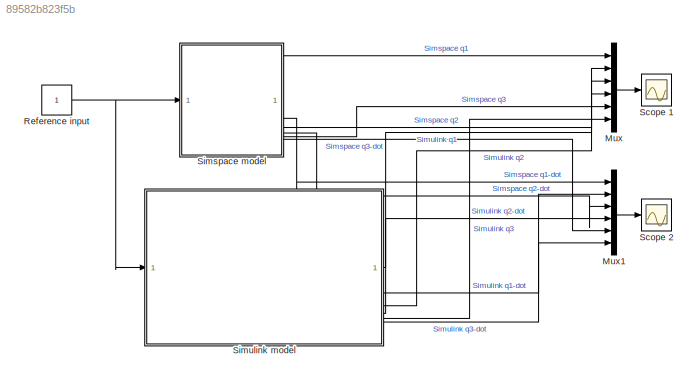
MODEL slx_89582b823f5b
KIND model
CONFIG AbsTol = auto
CONFIG EnableMultiTasking = off
CONFIG FixedStep = auto
CONFIG MaxStep = auto
CONFIG MinStep = auto
CONFIG RelTol = 1e-3
CONFIG SampleTimeConstraint = Unconstrained
CONFIG SolverName = VariableStepAuto
CONFIG StartTime = 0.0
CONFIG StopTime = 10.0
BLOCK [Mux] Mux
  DisplayOption = bar
  Inputs = 6
BLOCK [Mux] Mux1
  DisplayOption = bar
  Inputs = 6
BLOCK [Constant] Reference input
BLOCK [Scope] Scope 1
  Floating = off
  NumInputPorts = 1
  ScopeSpecificationString = Simulink.scopes.TimeScopeBlockCfg('CurrentConfiguration', extmgr.ConfigurationSet(extmgr.Configuration('Core','General UI',true),extmgr.Configuration('Core','Source UI',true),extmgr.Configuration('Sources','WiredSimulink',true),extmgr.Configuration('Visuals','Time Domain',true,'SerializedDisplays',{struct('MinYLimReal','-1.62217','MaxYLimReal','5.21334','YLabelReal','','MinYLimMag','0.00000','MaxY...<+1399ch>
BLOCK [Scope] Scope 2
  Floating = off
  NumInputPorts = 1
  ScopeSpecificationString = Simulink.scopes.TimeScopeBlockCfg('CurrentConfiguration', extmgr.ConfigurationSet(extmgr.Configuration('Core','General UI',true),extmgr.Configuration('Core','Source UI',true),extmgr.Configuration('Sources','WiredSimulink',true,'DataLoggingVariableName','ScopeData1'),extmgr.Configuration('Visuals','Time Domain',true,'SerializedDisplays',{struct('MinYLimReal','-11.29657','MaxYLimReal','12.95949','YL...<+1525ch>
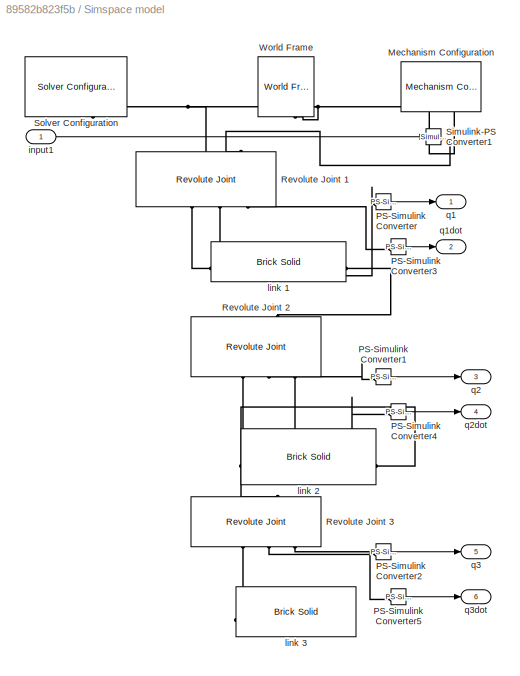
BLOCK [SubSystem] Simspace model
BLOCK [Reference] Simspace model/Mechanism Configuration  REF=sm_lib/Utilities/Mechanism
Configuration
  NameLocation = right
  SourceBlock = sm_lib/Utilities/Mechanism\nConfiguration
  SourceType = Mechanism\nConfiguration
BLOCK [Reference] Simspace model/PS-Simulink Converter  REF=nesl_utility/PS-Simulink
Converter
  SourceBlock = nesl_utility/PS-Simulink\nConverter
  SourceType = PS-Simulink\nConverter
BLOCK [Reference] Simspace model/PS-Simulink Converter1  REF=nesl_utility/PS-Simulink
Converter
  SourceBlock = nesl_utility/PS-Simulink\nConverter
  SourceType = PS-Simulink\nConverter
BLOCK [Reference] Simspace model/PS-Simulink Converter2  REF=nesl_utility/PS-Simulink
Converter
  SourceBlock = nesl_utility/PS-Simulink\nConverter
  SourceType = PS-Simulink\nConverter
BLOCK [Reference] Simspace model/PS-Simulink Converter3  REF=nesl_utility/PS-Simulink
Converter
  SourceBlock = nesl_utility/PS-Simulink\nConverter
  SourceType = PS-Simulink\nConverter
BLOCK [Reference] Simspace model/PS-Simulink Converter4  REF=nesl_utility/PS-Simulink
Converter
  SourceBlock = nesl_utility/PS-Simulink\nConverter
  SourceType = PS-Simulink\nConverter
BLOCK [Reference] Simspace model/PS-Simulink Converter5  REF=nesl_utility/PS-Simulink
Converter
  SourceBlock = nesl_utility/PS-Simulink\nConverter
  SourceType = PS-Simulink\nConverter
BLOCK [Reference] Simspace model/Revolute Joint 1  REF=sm_lib/Joints/Revolute Joint
  NameLocation = right
  SourceBlock = sm_lib/Joints/Revolute Joint
  SourceType = Revolute Joint
BLOCK [Reference] Simspace model/Revolute Joint 2  REF=sm_lib/Joints/Revolute Joint
  NameLocation = right
  SourceBlock = sm_lib/Joints/Revolute Joint
  SourceType = Revolute Joint
BLOCK [Reference] Simspace model/Revolute Joint 3  REF=sm_lib/Joints/Revolute Joint
  NameLocation = right
  SourceBlock = sm_lib/Joints/Revolute Joint
  SourceType = Revolute Joint
BLOCK [Reference] Simspace model/Simulink-PS Converter1  REF=nesl_utility/Simulink-PS
Converter
  SourceBlock = nesl_utility/Simulink-PS\nConverter
  SourceType = Simulink-PS\nConverter
BLOCK [Reference] Simspace model/Solver Configuration  REF=nesl_utility/Solver
Configuration
  NameLocation = right
  SourceBlock = nesl_utility/Solver\nConfiguration
  SourceType = Solver\nConfiguration
BLOCK [Reference] Simspace model/World Frame  REF=sm_lib/Frames and
Transforms/World Frame
  NameLocation = right
  SourceBlock = sm_lib/Frames and\nTransforms/World Frame
  SourceType = World Frame
BLOCK [Inport] Simspace model/input1
BLOCK [Reference] Simspace model/link 1  REF=sm_lib/Body Elements/Brick Solid
  NameLocation = top
  SourceBlock = sm_lib/Body Elements/Brick Solid
  SourceType = Brick Solid
BLOCK [Reference] Simspace model/link 2  REF=sm_lib/Body Elements/Brick Solid
  NameLocation = top
  SourceBlock = sm_lib/Body Elements/Brick Solid
  SourceType = Brick Solid
BLOCK [Reference] Simspace model/link 3  REF=sm_lib/Body Elements/Brick Solid
  NameLocation = top
  SourceBlock = sm_lib/Body Elements/Brick Solid
  SourceType = Brick Solid
BLOCK [Outport] Simspace model/q1
BLOCK [Outport] Simspace model/q1dot
  Port = 2
BLOCK [Outport] Simspace model/q2
  NameLocation = top
  Port = 3
BLOCK [Outport] Simspace model/q2dot
  Port = 4
BLOCK [Outport] Simspace model/q3
  Port = 5
BLOCK [Outport] Simspace model/q3dot
  Port = 6
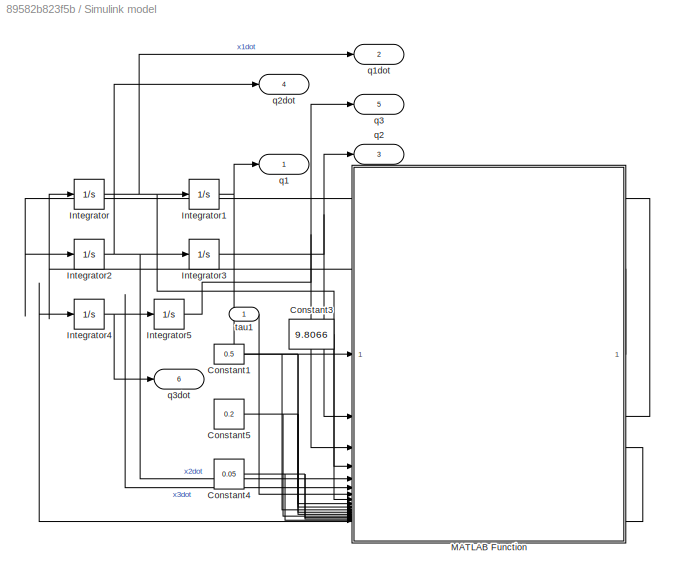
BLOCK [SubSystem] Simulink model
BLOCK [Constant] Simulink model/Constant1
  Value = 0.5
BLOCK [Constant] Simulink model/Constant3
  Value = 9.8066
BLOCK [Constant] Simulink model/Constant4
  Value = 0.05
BLOCK [Constant] Simulink model/Constant5
  Value = 0.2
BLOCK [Integrator] Simulink model/Integrator
BLOCK [Integrator] Simulink model/Integrator1
BLOCK [Integrator] Simulink model/Integrator2
BLOCK [Integrator] Simulink model/Integrator3
BLOCK [Integrator] Simulink model/Integrator4
BLOCK [Integrator] Simulink model/Integrator5
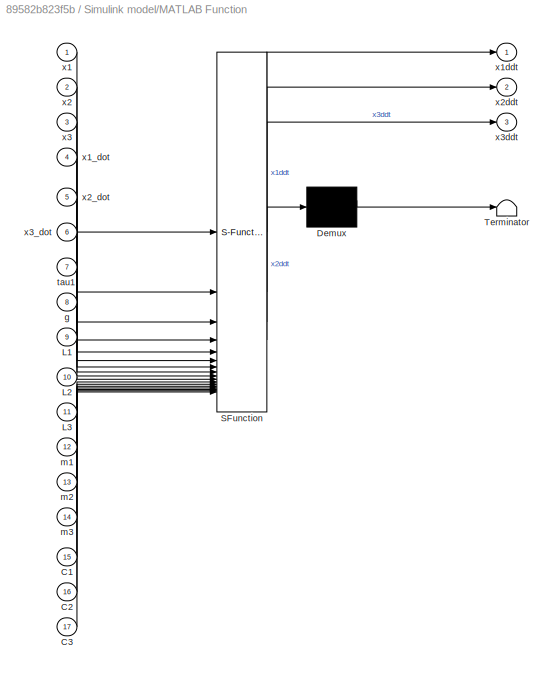
BLOCK [SubSystem] Simulink model/MATLAB Function
  ErrorFcn = Stateflow.Translate.translate
  PermitHierarchicalResolution = ExplicitOnly
  SFBlockType = MATLAB Function
  TreatAsAtomicUnit = on
BLOCK [Demux] Simulink model/MATLAB Function/ Demux 
  Outputs = 1
BLOCK [S-Function] Simulink model/MATLAB Function/ SFunction 
  EnableBusSupport = on
  FunctionName = sf_sfun
  PortCounts = [17 4]
  SFcnIsStateOwnerBlock = off
  SFunctionDeploymentMode = off
  Tag = Stateflow S-Function 2
BLOCK [Terminator] Simulink model/MATLAB Function/ Terminator 
BLOCK [Inport] Simulink model/MATLAB Function/C1
  Port = 15
BLOCK [Inport] Simulink model/MATLAB Function/C2
  Port = 16
BLOCK [Inport] Simulink model/MATLAB Function/C3
  Port = 17
BLOCK [Inport] Simulink model/MATLAB Function/L1
  Port = 9
BLOCK [Inport] Simulink model/MATLAB Function/L2
  Port = 10
BLOCK [Inport] Simulink model/MATLAB Function/L3
  Port = 11
BLOCK [Inport] Simulink model/MATLAB Function/g
  Port = 8
BLOCK [Inport] Simulink model/MATLAB Function/m1
  Port = 12
BLOCK [Inport] Simulink model/MATLAB Function/m2
  Port = 13
BLOCK [Inport] Simulink model/MATLAB Function/m3
  Port = 14
BLOCK [Inport] Simulink model/MATLAB Function/tau1
  Port = 7
BLOCK [Inport] Simulink model/MATLAB Function/x1
BLOCK [Inport] Simulink model/MATLAB Function/x1_dot
  Port = 4
BLOCK [Outport] Simulink model/MATLAB Function/x1ddt
BLOCK [Inport] Simulink model/MATLAB Function/x2
  Port = 2
BLOCK [Inport] Simulink model/MATLAB Function/x2_dot
  Port = 5
BLOCK [Outport] Simulink model/MATLAB Function/x2ddt
  Port = 2
BLOCK [Inport] Simulink model/MATLAB Function/x3
  Port = 3
BLOCK [Inport] Simulink model/MATLAB Function/x3_dot
  Port = 6
BLOCK [Outport] Simulink model/MATLAB Function/x3ddt
  Port = 3
BLOCK [Outport] Simulink model/q1
BLOCK [Outport] Simulink model/q1dot
  Port = 2
BLOCK [Outport] Simulink model/q2
  Port = 3
BLOCK [Outport] Simulink model/q2dot
  Port = 4
BLOCK [Outport] Simulink model/q3
  Port = 5
BLOCK [Outport] Simulink model/q3dot
  Port = 6
BLOCK [Inport] Simulink model/tau1
LINE Mux1:1 -> Scope 2:1
LINE Mux:1 -> Scope 1:1
NET Reference input:1 -> Simspace model:1, Simulink model:1
LINE Simspace model/PS-Simulink Converter1:1 -> Simspace model/q2:1
LINE Simspace model/PS-Simulink Converter2:1 -> Simspace model/q3:1
LINE Simspace model/PS-Simulink Converter3:1 -> Simspace model/q1dot:1
LINE Simspace model/PS-Simulink Converter4:1 -> Simspace model/q2dot:1
LINE Simspace model/PS-Simulink Converter5:1 -> Simspace model/q3dot:1
LINE Simspace model/PS-Simulink Converter:1 -> Simspace model/q1:1
LINE Simspace model/input1:1 -> Simspace model/Simulink-PS Converter1:1
LINE Simspace model:1 -> Mux:1
LINE Simspace model:2 -> Mux1:1
LINE Simspace model:3 -> Mux:3
LINE Simspace model:4 -> Mux1:3
LINE Simspace model:5 -> Mux:5
LINE Simspace model:6 -> Mux1:5
NET Simulink model/Constant1:1 -> Simulink model/MATLAB Function:10, Simulink model/MATLAB Function:11, Simulink model/MATLAB Function:9
LINE Simulink model/Constant3:1 -> Simulink model/MATLAB Function:8
NET Simulink model/Constant4:1 -> Simulink model/MATLAB Function:15, Simulink model/MATLAB Function:16, Simulink model/MATLAB Function:17
NET Simulink model/Constant5:1 -> Simulink model/MATLAB Function:12, Simulink model/MATLAB Function:13, Simulink model/MATLAB Function:14
NET Simulink model/Integrator1:1 -> Simulink model/MATLAB Function:1, Simulink model/q1:1
NET Simulink model/Integrator2:1 -> Simulink model/Integrator3:1, Simulink model/MATLAB Function:5, Simulink model/q2dot:1
NET Simulink model/Integrator3:1 -> Simulink model/MATLAB Function:2, Simulink model/q2:1
NET Simulink model/Integrator4:1 -> Simulink model/Integrator5:1, Simulink model/MATLAB Function:6, Simulink model/q3dot:1
NET Simulink model/Integrator5:1 -> Simulink model/MATLAB Function:3, Simulink model/q3:1
NET Simulink model/Integrator:1 -> Simulink model/Integrator1:1, Simulink model/MATLAB Function:4, Simulink model/q1dot:1
LINE Simulink model/MATLAB Function:1 -> Simulink model/Integrator:1
LINE Simulink model/MATLAB Function:2 -> Simulink model/Integrator2:1
LINE Simulink model/MATLAB Function:3 -> Simulink model/Integrator4:1
LINE Simulink model/tau1:1 -> Simulink model/MATLAB Function:7
LINE Simulink model:1 -> Mux:2
LINE Simulink model:2 -> Mux1:2
LINE Simulink model:3 -> Mux:4
LINE Simulink model:4 -> Mux1:4
LINE Simulink model:5 -> Mux:6
LINE Simulink model:6 -> Mux1:6
PNET net1: Simspace model/Mechanism Configuration:RConn1 -- Simspace model/Revolute Joint 1:LConn1 -- Simspace model/Solver Configuration:RConn1 -- Simspace model/World Frame:RConn1
PLINE Simspace model/PS-Simulink Converter1:LConn1 -- Simspace model/Revolute Joint 2:RConn2
PLINE Simspace model/PS-Simulink Converter2:LConn1 -- Simspace model/Revolute Joint 3:RConn2
PLINE Simspace model/PS-Simulink Converter3:LConn1 -- Simspace model/Revolute Joint 1:RConn3
PLINE Simspace model/PS-Simulink Converter4:LConn1 -- Simspace model/Revolute Joint 2:RConn3
PLINE Simspace model/PS-Simulink Converter5:LConn1 -- Simspace model/Revolute Joint 3:RConn3
PLINE Simspace model/PS-Simulink Converter:LConn1 -- Simspace model/Revolute Joint 1:RConn2
PLINE Simspace model/Revolute Joint 1:LConn2 -- Simspace model/Simulink-PS Converter1:RConn1
PLINE Simspace model/Revolute Joint 1:RConn1 -- Simspace model/link 1:LConn1
PLINE Simspace model/Revolute Joint 2:LConn1 -- Simspace model/link 1:RConn1
PLINE Simspace model/Revolute Joint 2:RConn1 -- Simspace model/link 2:LConn1
PLINE Simspace model/Revolute Joint 3:LConn1 -- Simspace model/link 2:RConn1
PLINE Simspace model/Revolute Joint 3:RConn1 -- Simspace model/link 3:LConn1
note: NET lines group one-source signal fan-out (src -> all destinations, sorted); 1:1 wires keep LINE; PNET lines group multi-terminal physical nets as a canonical sorted terminal list (undirected conserving connections); 2-terminal nets keep the pairwise PLINE form
CHART Simulink model/MATLAB Function states=1 transitions=1
  STATE_LABEL 'eML_blk_kernel()'
  STATE_LABEL 'SCRIPT:\nfunction [x1ddt,x2ddt,x3ddt] = fcn(x1,x2,x3,x1_dot,x2_dot,x3_dot,tau1,g,L1,L2,L3,m1,m2,m3,C1,C2,C3)\n\nI1=(m1/12)*L1*L1;\nI2=(m2/12)*L2*L2;\nI3=(m3/12)*L3*L3;\n\nd11=I1 + I2/2 + I3/2 - (I3*cos(2*x2 + 2*x3))/2 + (L1^2*m1)/4 + L1^2*m2 + L1^2*m3 + (L2^2*m2)/8 + (L2^2*m3)/2 + (L3^2*m3)/8 - (I2*cos(2*x2))/2 - (L2^2*m2*cos(2*x2))/8 - (L2^2*m3*cos(2*x2))/2 - (L3^2*m3*cos(2*x2 + 2*x3))/8 + (L2*L3*m3*cos...<+1703ch>'
CHART  states=0 transitions=0
